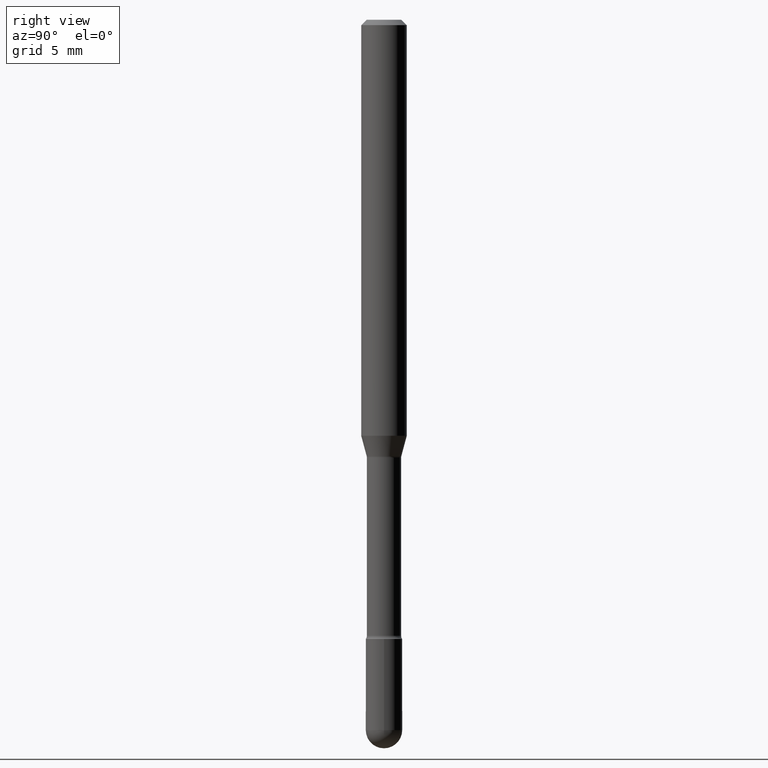
[diagram: clean part render]
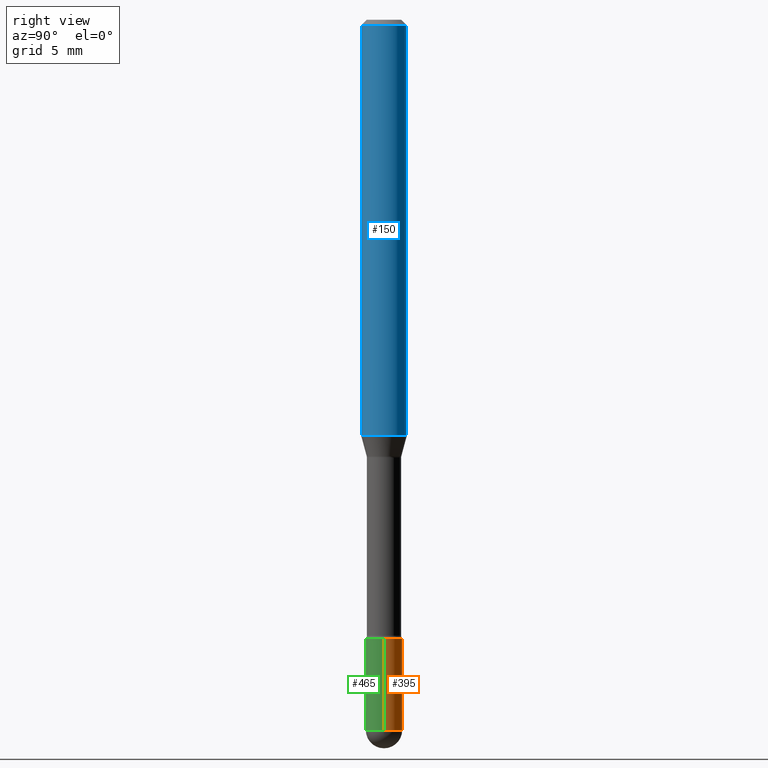
[diagram: same view with three faces highlighted in distinct colors, each labeled with its STEP entity id]
A machine part, right view with three faces highlighted in distinct colors.
Their STEP definitions:

[orange] entity #395 — the highlighted cylindrical surface (edge-blend (fillet) strip) has radius 1.27 mm, axis along (-0, 0, 1).
#4 = DIRECTION ( 'NONE',  ( -2.445468806185136877E-29, 3.491481338843145188E-15, 1.000000000000000000 ) ) ;
#10 = AXIS2_PLACEMENT_3D ( 'NONE', #205, #365, #239 ) ;
#13 = DIRECTION ( 'NONE',  ( 1.000000000000000000, -6.982962677686274599E-15, 0.000000000000000000 ) ) ;
#53 = DIRECTION ( 'NONE',  ( -2.445468806185136877E-29, 3.491481338843145188E-15, 1.000000000000000000 ) ) ;
#56 = ORIENTED_EDGE ( 'NONE', *, *, #340, .T. ) ;
#57 = CARTESIAN_POINT ( 'NONE',  ( -0.04999999999999999584, -6.016682075508689264E-15, -1.949999999999999734 ) ) ;
#82 = AXIS2_PLACEMENT_3D ( 'NONE', #443, #145, #141 ) ;
#95 = ORIENTED_EDGE ( 'NONE', *, *, #154, .F. ) ;
#103 = DIRECTION ( 'NONE',  ( -2.445468806185136597E-29, 3.491481338843145583E-15, 1.000000000000000000 ) ) ;
#108 = CARTESIAN_POINT ( 'NONE',  ( 0.04999999999999999584, -6.721101577273053797E-15, -1.949999999999999734 ) ) ;
#141 = DIRECTION ( 'NONE',  ( 1.000000000000000000, -6.982962677686275388E-15, 0.000000000000000000 ) ) ;
#145 = DIRECTION ( 'NONE',  ( -2.445468806185136597E-29, 3.491481338843145583E-15, 1.000000000000000000 ) ) ;
#154 = EDGE_CURVE ( 'NONE', #517, #488, #536, .T. ) ;
#156 = CIRCLE ( 'NONE', #82, 0.04999999999999999584 ) ;
#176 = LINE ( 'NONE', #522, #505 ) ;
#181 = CIRCLE ( 'NONE', #372, 0.04999999999999999584 ) ;
#191 = VERTEX_POINT ( 'NONE', #314 ) ;
#205 = CARTESIAN_POINT ( 'NONE',  ( 0.000000000000000000, 0.000000000000000000, 0.000000000000000000 ) ) ;
#215 = LINE ( 'NONE', #338, #463 ) ;
#230 = CARTESIAN_POINT ( 'NONE',  ( 4.157296970514731878E-29, -5.935518276033347214E-15, -1.699999999999999956 ) ) ;
#239 = DIRECTION ( 'NONE',  ( 1.000000000000000000, -6.982962677686265922E-15, 4.876176775795936353E-29 ) ) ;
#253 = EDGE_CURVE ( 'NONE', #450, #517, #176, .T. ) ;
#285 = DIRECTION ( 'NONE',  ( -2.445468806185136597E-29, 3.491481338843145583E-15, 1.000000000000000000 ) ) ;
#288 = DIRECTION ( 'NONE',  ( 1.000000000000000000, -6.982962677686275388E-15, 0.000000000000000000 ) ) ;
#296 = EDGE_CURVE ( 'NONE', #450, #191, #156, .T. ) ;
#299 = CARTESIAN_POINT ( 'NONE',  ( -0.05000000000000000278, -6.016682075508689264E-15, -1.699999999999999956 ) ) ;
#314 = CARTESIAN_POINT ( 'NONE',  ( 3.491481338843609137E-16, 0.04999999999999318184, -1.949999999999999956 ) ) ;
#338 = CARTESIAN_POINT ( 'NONE',  ( -0.04999999999999999584, 3.552713678800500634E-16, -2.459467545127452961E-30 ) ) ;
#340 = EDGE_CURVE ( 'NONE', #191, #407, #181, .T. ) ;
#365 = DIRECTION ( 'NONE',  ( -2.445468806185136597E-29, 3.491481338843145583E-15, 1.000000000000000000 ) ) ;
#366 = EDGE_LOOP ( 'NONE', ( #56, #447, #95, #460, #551 ) ) ;
#372 = AXIS2_PLACEMENT_3D ( 'NONE', #544, #285, #288 ) ;
#395 = ADVANCED_FACE ( 'NONE', ( #448 ), #457, .T. ) ;
#407 = VERTEX_POINT ( 'NONE', #57 ) ;
#443 = CARTESIAN_POINT ( 'NONE',  ( 4.768664172061015467E-29, -6.808388610744132920E-15, -1.949999999999999734 ) ) ;
#447 = ORIENTED_EDGE ( 'NONE', *, *, #542, .T. ) ;
#448 = FACE_OUTER_BOUND ( 'NONE', #366, .T. ) ;
#450 = VERTEX_POINT ( 'NONE', #108 ) ;
#457 = CYLINDRICAL_SURFACE ( 'NONE', #10, 0.04999999999999999584 ) ;
#460 = ORIENTED_EDGE ( 'NONE', *, *, #253, .F. ) ;
#462 = AXIS2_PLACEMENT_3D ( 'NONE', #230, #103, #13 ) ;
#463 = VECTOR ( 'NONE', #4, 39.37007874015748143 ) ;
#488 = VERTEX_POINT ( 'NONE', #299 ) ;
#505 = VECTOR ( 'NONE', #53, 39.37007874015748143 ) ;
#507 = CARTESIAN_POINT ( 'NONE',  ( 0.05000000000000000278, -6.284666409917660550E-15, -1.699999999999999956 ) ) ;
#517 = VERTEX_POINT ( 'NONE', #507 ) ;
#522 = CARTESIAN_POINT ( 'NONE',  ( 0.04999999999999999584, -3.491481338843132862E-16, 2.438088387897967896E-30 ) ) ;
#536 = CIRCLE ( 'NONE', #462, 0.05000000000000000278 ) ;
#542 = EDGE_CURVE ( 'NONE', #407, #488, #215, .T. ) ;
#544 = CARTESIAN_POINT ( 'NONE',  ( 4.768664172061015467E-29, -6.808388610744132920E-15, -1.949999999999999734 ) ) ;
#551 = ORIENTED_EDGE ( 'NONE', *, *, #296, .T. ) ;

[blue] entity #150 — the highlighted cylindrical surface (edge-blend (fillet) strip) has radius 1.5875 mm, axis along (-0, 0, 1).
#8 = DIRECTION ( 'NONE',  ( -6.982962677686265922E-15, -1.000000000000000000, 3.491631476579074343E-15 ) ) ;
#42 = ORIENTED_EDGE ( 'NONE', *, *, #330, .T. ) ;
#65 = DIRECTION ( 'NONE',  ( -6.982962677686265922E-15, -1.000000000000000000, 4.370956789862821150E-15 ) ) ;
#67 = CARTESIAN_POINT ( 'NONE',  ( 3.668045948346749783E-31, -5.237447214868640110E-17, -0.01500000000000008271 ) ) ;
#76 = VERTEX_POINT ( 'NONE', #175 ) ;
#99 = CARTESIAN_POINT ( 'NONE',  ( -1.169113584055446105E-44, 1.669184350826100908E-30, 4.780733988912460139E-16 ) ) ;
#105 = LINE ( 'NONE', #266, #333 ) ;
#106 = DIRECTION ( 'NONE',  ( -2.445363965564486438E-29, 3.491631476579074343E-15, 1.000000000000000000 ) ) ;
#119 = VECTOR ( 'NONE', #245, 39.37007874015748143 ) ;
#129 = AXIS2_PLACEMENT_3D ( 'NONE', #323, #195, #65 ) ;
#139 = CARTESIAN_POINT ( 'NONE',  ( 4.440892098500904235E-16, 0.06249999999999600320, -1.142153212482682534 ) ) ;
#150 = ADVANCED_FACE ( 'NONE', ( #223 ), #537, .T. ) ;
#175 = CARTESIAN_POINT ( 'NONE',  ( -4.364351673553912750E-16, -0.06250000000000005551, -0.01499999999999986587 ) ) ;
#177 = VERTEX_POINT ( 'NONE', #139 ) ;
#183 = EDGE_CURVE ( 'NONE', #432, #76, #105, .T. ) ;
#195 = DIRECTION ( 'NONE',  ( -2.445363965564486438E-29, 3.491631476579074343E-15, 1.000000000000000000 ) ) ;
#206 = ORIENTED_EDGE ( 'NONE', *, *, #183, .F. ) ;
#223 = FACE_OUTER_BOUND ( 'NONE', #497, .T. ) ;
#234 = CARTESIAN_POINT ( 'NONE',  ( -4.364351673553637635E-16, -0.06250000000000399680, -1.142153212482682090 ) ) ;
#245 = DIRECTION ( 'NONE',  ( -2.445363965564486438E-29, 3.491631476579074343E-15, 1.000000000000000000 ) ) ;
#266 = CARTESIAN_POINT ( 'NONE',  ( -4.364351673553916201E-16, -0.06250000000000000000, 6.963003661774382343E-16 ) ) ;
#323 = CARTESIAN_POINT ( 'NONE',  ( 2.792980308958869035E-29, -3.987978107780441348E-15, -1.142153212482682312 ) ) ;
#325 = LINE ( 'NONE', #489, #119 ) ;
#330 = EDGE_CURVE ( 'NONE', #177, #494, #325, .T. ) ;
#333 = VECTOR ( 'NONE', #399, 39.37007874015748143 ) ;
#375 = EDGE_CURVE ( 'NONE', #76, #494, #404, .T. ) ;
#387 = EDGE_CURVE ( 'NONE', #432, #177, #415, .T. ) ;
#399 = DIRECTION ( 'NONE',  ( -2.445363965564486438E-29, 3.491631476579074343E-15, 1.000000000000000000 ) ) ;
#404 = CIRCLE ( 'NONE', #561, 0.06250000000000000000 ) ;
#411 = DIRECTION ( 'NONE',  ( -6.982962677686265922E-15, -1.000000000000000000, 3.483106191921935554E-15 ) ) ;
#415 = CIRCLE ( 'NONE', #129, 0.06250000000000000000 ) ;
#420 = ORIENTED_EDGE ( 'NONE', *, *, #375, .F. ) ;
#432 = VERTEX_POINT ( 'NONE', #234 ) ;
#449 = AXIS2_PLACEMENT_3D ( 'NONE', #99, #106, #8 ) ;
#489 = CARTESIAN_POINT ( 'NONE',  ( 4.440892098500625669E-16, 0.06250000000000000000, 2.598464316050538922E-16 ) ) ;
#494 = VERTEX_POINT ( 'NONE', #531 ) ;
#495 = DIRECTION ( 'NONE',  ( -2.445363965564486438E-29, 3.491631476579074343E-15, 1.000000000000000000 ) ) ;
#497 = EDGE_LOOP ( 'NONE', ( #546, #42, #420, #206 ) ) ;
#531 = CARTESIAN_POINT ( 'NONE',  ( 4.440892098500906207E-16, 0.06249999999999993755, -0.01500000000000030129 ) ) ;
#537 = CYLINDRICAL_SURFACE ( 'NONE', #449, 0.06250000000000000000 ) ;
#546 = ORIENTED_EDGE ( 'NONE', *, *, #387, .T. ) ;
#561 = AXIS2_PLACEMENT_3D ( 'NONE', #67, #495, #411 ) ;

[green] entity #465 — the highlighted cylindrical surface (edge-blend (fillet) strip) has radius 1.27 mm, axis along (-0, 0, 1).
#2 = ORIENTED_EDGE ( 'NONE', *, *, #542, .F. ) ;
#4 = DIRECTION ( 'NONE',  ( -2.445468806185136877E-29, 3.491481338843145188E-15, 1.000000000000000000 ) ) ;
#14 = CARTESIAN_POINT ( 'NONE',  ( 4.157296970514731878E-29, -5.935518276033347214E-15, -1.699999999999999956 ) ) ;
#26 = DIRECTION ( 'NONE',  ( 1.000000000000000000, -6.982962677686275388E-15, 0.000000000000000000 ) ) ;
#32 = EDGE_CURVE ( 'NONE', #300, #450, #198, .T. ) ;
#47 = DIRECTION ( 'NONE',  ( -2.445468806185136597E-29, 3.491481338843145583E-15, 1.000000000000000000 ) ) ;
#53 = DIRECTION ( 'NONE',  ( -2.445468806185136877E-29, 3.491481338843145188E-15, 1.000000000000000000 ) ) ;
#57 = CARTESIAN_POINT ( 'NONE',  ( -0.04999999999999999584, -6.016682075508689264E-15, -1.949999999999999734 ) ) ;
#69 = ORIENTED_EDGE ( 'NONE', *, *, #256, .F. ) ;
#72 = DIRECTION ( 'NONE',  ( -2.445468806185136597E-29, 3.491481338843145583E-15, 1.000000000000000000 ) ) ;
#81 = CARTESIAN_POINT ( 'NONE',  ( 4.768664172061015467E-29, -6.808388610744132920E-15, -1.949999999999999734 ) ) ;
#94 = CIRCLE ( 'NONE', #227, 0.04999999999999999584 ) ;
#104 = CIRCLE ( 'NONE', #166, 0.05000000000000000278 ) ;
#108 = CARTESIAN_POINT ( 'NONE',  ( 0.04999999999999999584, -6.721101577273053797E-15, -1.949999999999999734 ) ) ;
#148 = DIRECTION ( 'NONE',  ( 1.000000000000000000, -6.982962677686274599E-15, 0.000000000000000000 ) ) ;
#152 = CARTESIAN_POINT ( 'NONE',  ( 0.000000000000000000, 0.000000000000000000, 0.000000000000000000 ) ) ;
#166 = AXIS2_PLACEMENT_3D ( 'NONE', #14, #47, #148 ) ;
#176 = LINE ( 'NONE', #522, #505 ) ;
#189 = CARTESIAN_POINT ( 'NONE',  ( 4.768664172061015467E-29, -6.808388610744132920E-15, -1.949999999999999734 ) ) ;
#192 = ORIENTED_EDGE ( 'NONE', *, *, #349, .T. ) ;
#198 = CIRCLE ( 'NONE', #277, 0.04999999999999999584 ) ;
#215 = LINE ( 'NONE', #338, #463 ) ;
#221 = DIRECTION ( 'NONE',  ( 1.000000000000000000, -6.982962677686275388E-15, 0.000000000000000000 ) ) ;
#227 = AXIS2_PLACEMENT_3D ( 'NONE', #189, #72, #26 ) ;
#240 = EDGE_LOOP ( 'NONE', ( #2, #192, #496, #410, #69 ) ) ;
#253 = EDGE_CURVE ( 'NONE', #450, #517, #176, .T. ) ;
#256 = EDGE_CURVE ( 'NONE', #488, #517, #104, .T. ) ;
#274 = DIRECTION ( 'NONE',  ( 1.000000000000000000, -6.982962677686265922E-15, 4.876176775795936353E-29 ) ) ;
#277 = AXIS2_PLACEMENT_3D ( 'NONE', #81, #370, #221 ) ;
#299 = CARTESIAN_POINT ( 'NONE',  ( -0.05000000000000000278, -6.016682075508689264E-15, -1.699999999999999956 ) ) ;
#300 = VERTEX_POINT ( 'NONE', #479 ) ;
#320 = FACE_OUTER_BOUND ( 'NONE', #240, .T. ) ;
#338 = CARTESIAN_POINT ( 'NONE',  ( -0.04999999999999999584, 3.552713678800500634E-16, -2.459467545127452961E-30 ) ) ;
#349 = EDGE_CURVE ( 'NONE', #407, #300, #94, .T. ) ;
#370 = DIRECTION ( 'NONE',  ( -2.445468806185136597E-29, 3.491481338843145583E-15, 1.000000000000000000 ) ) ;
#385 = AXIS2_PLACEMENT_3D ( 'NONE', #152, #403, #274 ) ;
#403 = DIRECTION ( 'NONE',  ( -2.445468806185136597E-29, 3.491481338843145583E-15, 1.000000000000000000 ) ) ;
#407 = VERTEX_POINT ( 'NONE', #57 ) ;
#410 = ORIENTED_EDGE ( 'NONE', *, *, #253, .T. ) ;
#450 = VERTEX_POINT ( 'NONE', #108 ) ;
#463 = VECTOR ( 'NONE', #4, 39.37007874015748143 ) ;
#465 = ADVANCED_FACE ( 'NONE', ( #320 ), #552, .T. ) ;
#479 = CARTESIAN_POINT ( 'NONE',  ( -3.552713678800023866E-16, -0.05000000000000680983, -1.949999999999999512 ) ) ;
#488 = VERTEX_POINT ( 'NONE', #299 ) ;
#496 = ORIENTED_EDGE ( 'NONE', *, *, #32, .T. ) ;
#505 = VECTOR ( 'NONE', #53, 39.37007874015748143 ) ;
#507 = CARTESIAN_POINT ( 'NONE',  ( 0.05000000000000000278, -6.284666409917660550E-15, -1.699999999999999956 ) ) ;
#517 = VERTEX_POINT ( 'NONE', #507 ) ;
#522 = CARTESIAN_POINT ( 'NONE',  ( 0.04999999999999999584, -3.491481338843132862E-16, 2.438088387897967896E-30 ) ) ;
#542 = EDGE_CURVE ( 'NONE', #407, #488, #215, .T. ) ;
#552 = CYLINDRICAL_SURFACE ( 'NONE', #385, 0.04999999999999999584 ) ;